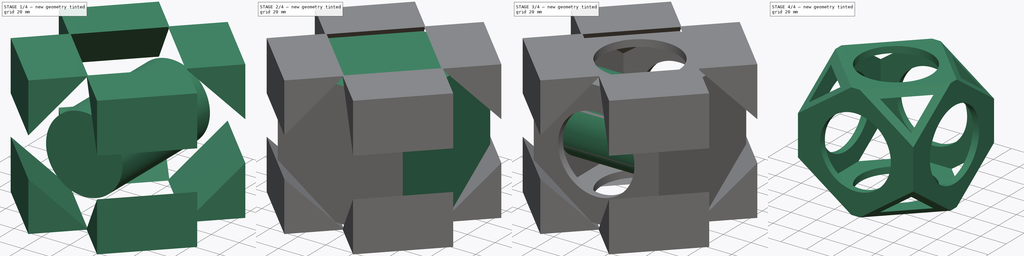
[diagram: build sequence overview — one tinted view per stage of 4, left to right]
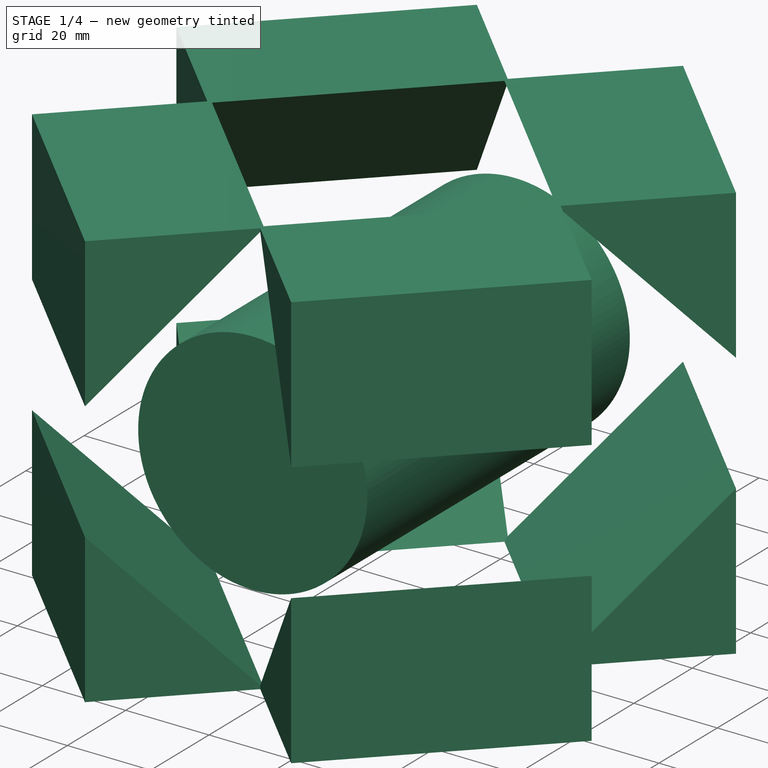
[diagram: stage 1 of 4 — iso view after this stage's code; geometry added in this stage tinted green]
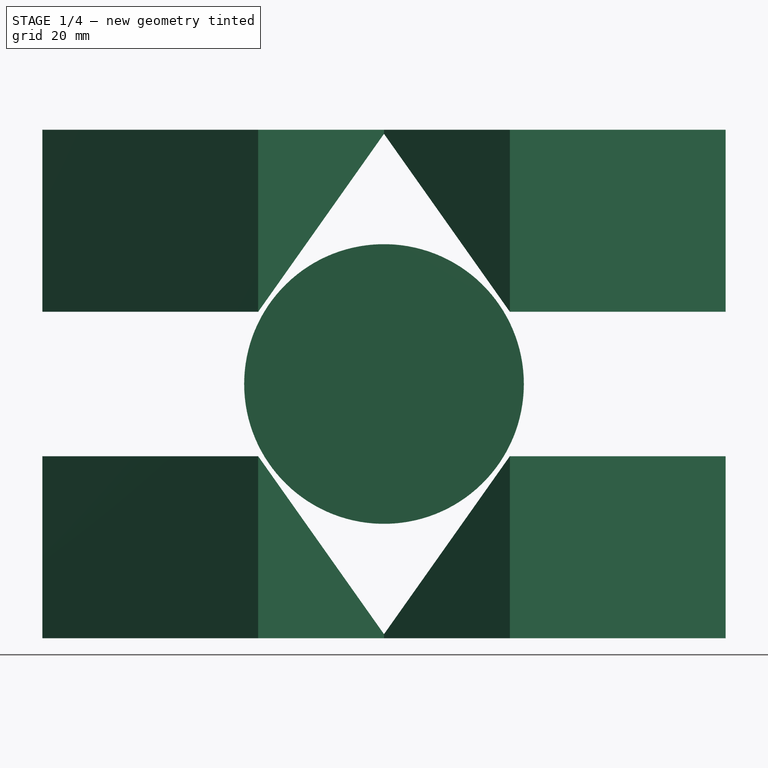
[diagram: stage 1 of 4 — front view after this stage's code; geometry added in this stage tinted green]
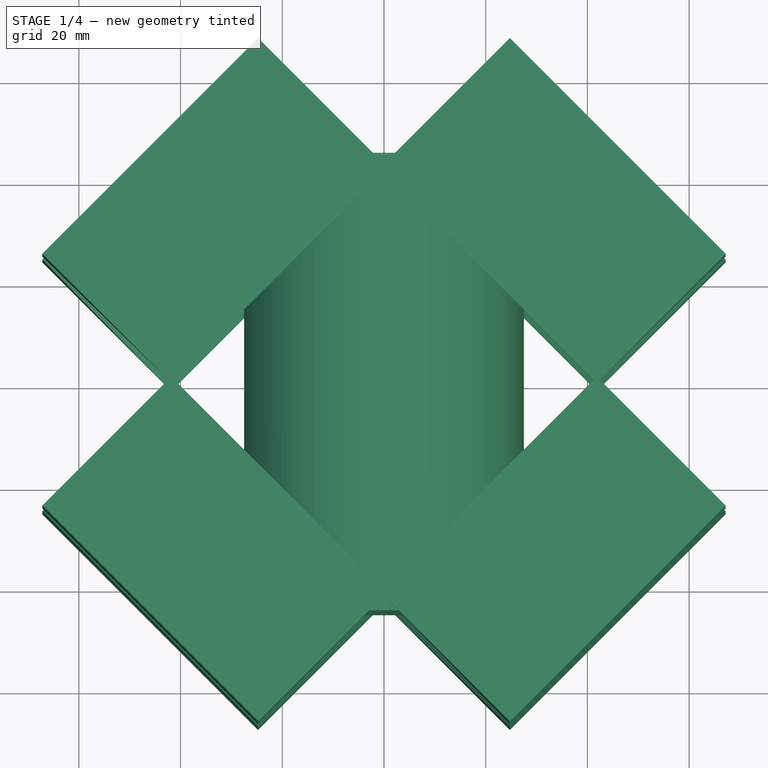
[diagram: stage 1 of 4 — top view after this stage's code; geometry added in this stage tinted green]
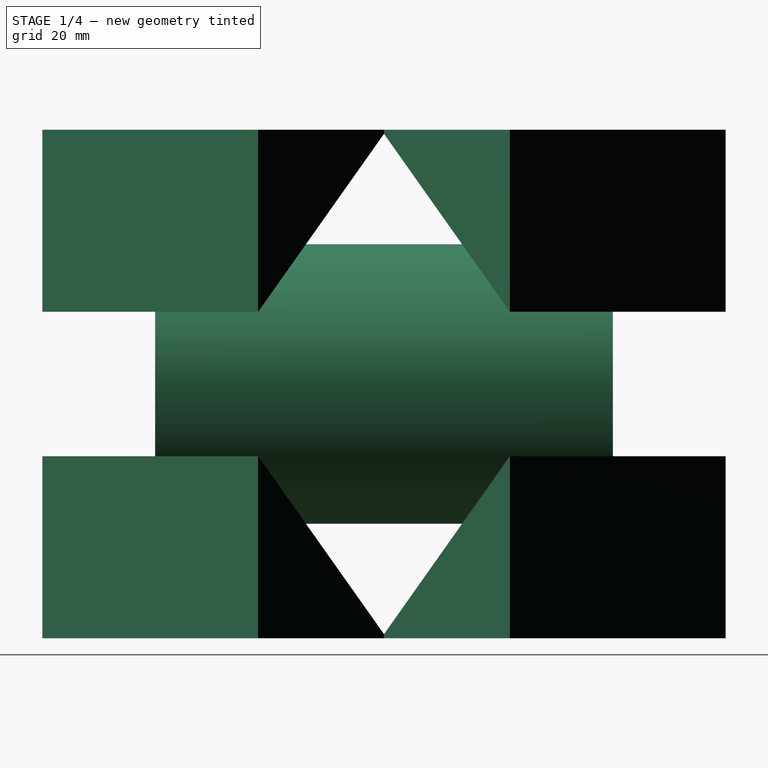
[diagram: stage 1 of 4 — right view after this stage's code; geometry added in this stage tinted green]
FCSTD DOCUMENT  (FreeCAD 0.18.3R)
Label: whiffle_ball
License: All rights reserved
LicenseURL: http://en.wikipedia.org/wiki/All_rights_reserved
objects: Part::Cut×6, Part::Cylinder×3, Part::Box×2, Sketcher::SketchObject×2, Part::Extrusion×2
note: 15 computed .brp shape members not serialized (recipe doc carries the construction recipe); baked Part::Feature solids carry a one-line shape summary decoded from their .brp

FEATURE [Part::Cylinder] Cylinder001
  Angle = 360
  AttacherType = Attacher::AttachEngine3D
  Height = 90
  Placement = pos=(0,45,0) rot=(1,0,0;1.5708rad)
  Radius = 27.5
FEATURE [Sketcher::SketchObject] Sketch
  Placement = pos=(0,0,0) rot=(-1,0,0;4.71239rad)
  sketch-geometry (12):
    g0: LineSegment StartX=-29.196 StartY=50 StartZ=0 EndX=-65 EndY=50 EndZ=0
    g1: LineSegment StartX=-65 StartY=50 StartZ=0 EndX=-65 EndY=14.196 EndZ=0
    g2: LineSegment StartX=-65 StartY=14.196 StartZ=0 EndX=-29.196 EndY=50 EndZ=0
    g3: LineSegment StartX=29.196 StartY=50 StartZ=0 EndX=65 EndY=50 EndZ=0
    g4: LineSegment StartX=65 StartY=50 StartZ=0 EndX=65 EndY=14.196 EndZ=0
    g5: LineSegment StartX=65 StartY=14.196 StartZ=0 EndX=29.196 EndY=50 EndZ=0
    g6: LineSegment StartX=65 StartY=-14.196 StartZ=0 EndX=65 EndY=-50 EndZ=0
    g7: LineSegment StartX=65 StartY=-50 StartZ=0 EndX=29.196 EndY=-50 EndZ=0
    g8: LineSegment StartX=29.196 StartY=-50 StartZ=0 EndX=65 EndY=-14.196 EndZ=0
    g9: LineSegment StartX=-65 StartY=-14.196 StartZ=0 EndX=-65 EndY=-50 EndZ=0
    g10: LineSegment StartX=-65 StartY=-50 StartZ=0 EndX=-29.196 EndY=-50 EndZ=0
    g11: LineSegment StartX=-29.196 StartY=-50 StartZ=0 EndX=-65 EndY=-14.196 EndZ=0
  constraints (33):
    c: Horizontal(g0)
    c: Coincident(g0,g1)
    c: Vertical(g1)
    c: Coincident(g1,g2)
    c: Coincident(g2,g0)
    c: Horizontal(g3)
    c: Coincident(g3,g4)
    c: Vertical(g4)
    c: Coincident(g4,g5)
    c: Coincident(g5,g3)
    c: Vertical(g6)
    c: Coincident(g6,g7)
    c: Horizontal(g7)
    c: Coincident(g7,g8)
    c: Coincident(g8,g6)
    c: Vertical(g9)
    c: Coincident(g9,g10)
    c: Horizontal(g10)
    c: Coincident(g10,g11)
    c: Coincident(g11,g9)
    c: Equal(g0,g1)
    c: Equal(g1,g3)
    c: Equal(g3,g4)
    c: Equal(g4,g6)
    c: Equal(g6,g7)
    c: Equal(g7,g10)
    c: Equal(g10,g9)
    c: Symmetric(g1,g9,g-1)
    c: Symmetric(g0,g3,g-2)
    c: Symmetric(g10,g7,g-2)
    c: Distance(g-1,g2) = 56
    c: DistanceY(g9,g0) = 100
    c: DistanceX(g0,g3) = 130
FEATURE [Part::Extrusion] Extrude
  Base = -> Sketch
  Dir = (0,-1,0)
  DirMode = 2
  FaceMakerClass = Part::FaceMakerBullseye
  LengthFwd = 60
  LengthRev = 0
  Placement = pos=(0,0,0) rot=(0,0,1;0.785398rad)
  Solid = true
  Symmetric = true
FEATURE [Sketcher::SketchObject] Sketch001
  Placement = pos=(0,0,0) rot=(1,0,0;1.5708rad)
  sketch-geometry (12):
    g0: LineSegment StartX=-29.196 StartY=50 StartZ=0 EndX=-65 EndY=50 EndZ=0
    g1: LineSegment StartX=-65 StartY=50 StartZ=0 EndX=-65 EndY=14.196 EndZ=0
    g2: LineSegment StartX=-65 StartY=14.196 StartZ=0 EndX=-29.196 EndY=50 EndZ=0
    g3: LineSegment StartX=29.196 StartY=50 StartZ=0 EndX=65 EndY=50 EndZ=0
    g4: LineSegment StartX=65 StartY=50 StartZ=0 EndX=65 EndY=14.196 EndZ=0
    g5: LineSegment StartX=65 StartY=14.196 StartZ=0 EndX=29.196 EndY=50 EndZ=0
    g6: LineSegment StartX=65 StartY=-14.196 StartZ=0 EndX=65 EndY=-50 EndZ=0
    g7: LineSegment StartX=65 StartY=-50 StartZ=0 EndX=29.196 EndY=-50 EndZ=0
    g8: LineSegment StartX=29.196 StartY=-50 StartZ=0 EndX=65 EndY=-14.196 EndZ=0
    g9: LineSegment StartX=-65 StartY=-14.196 StartZ=0 EndX=-65 EndY=-50 EndZ=0
    g10: LineSegment StartX=-65 StartY=-50 StartZ=0 EndX=-29.196 EndY=-50 EndZ=0
    g11: LineSegment StartX=-29.196 StartY=-50 StartZ=0 EndX=-65 EndY=-14.196 EndZ=0
  constraints (33):
    c: Horizontal(g0)
    c: Coincident(g0,g1)
    c: Vertical(g1)
    c: Coincident(g1,g2)
    c: Coincident(g2,g0)
    c: Horizontal(g3)
    c: Coincident(g3,g4)
    c: Vertical(g4)
    c: Coincident(g4,g5)
    c: Coincident(g5,g3)
    c: Vertical(g6)
    c: Coincident(g6,g7)
    c: Horizontal(g7)
    c: Coincident(g7,g8)
    c: Coincident(g8,g6)
    c: Vertical(g9)
    c: Coincident(g9,g10)
    c: Horizontal(g10)
    c: Coincident(g10,g11)
    c: Coincident(g11,g9)
    c: Equal(g0,g1)
    c: Equal(g1,g3)
    c: Equal(g3,g4)
    c: Equal(g4,g6)
    c: Equal(g6,g7)
    c: Equal(g7,g10)
    c: Equal(g10,g9)
    c: Symmetric(g1,g9,g-1)
    c: Symmetric(g0,g3,g-2)
    c: Symmetric(g10,g7,g-2)
    c: Distance(g-1,g2) = 56
    c: DistanceY(g9,g0) = 100
    c: DistanceX(g0,g3) = 130
FEATURE [Part::Extrusion] Extrude001
  Base = -> Sketch001
  Dir = (0,-1,2e-16)
  DirMode = 2
  FaceMakerClass = Part::FaceMakerBullseye
  LengthFwd = 60
  LengthRev = 0
  Placement = pos=(0,0,0) rot=(0,0,1;5.49779rad)
  Solid = true
  Symmetric = true
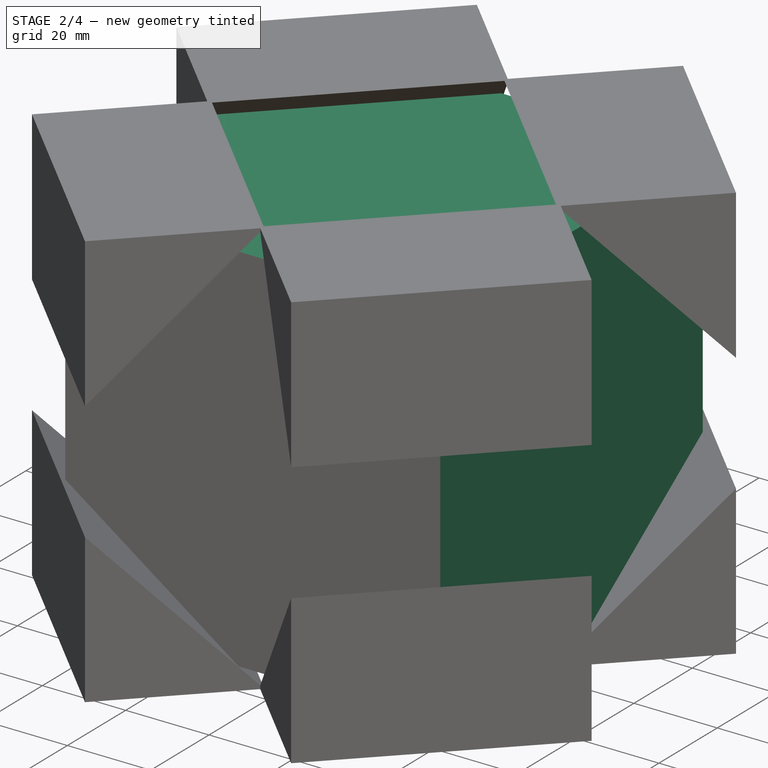
[diagram: stage 2 of 4 — iso view after this stage's code; geometry added in this stage tinted green]
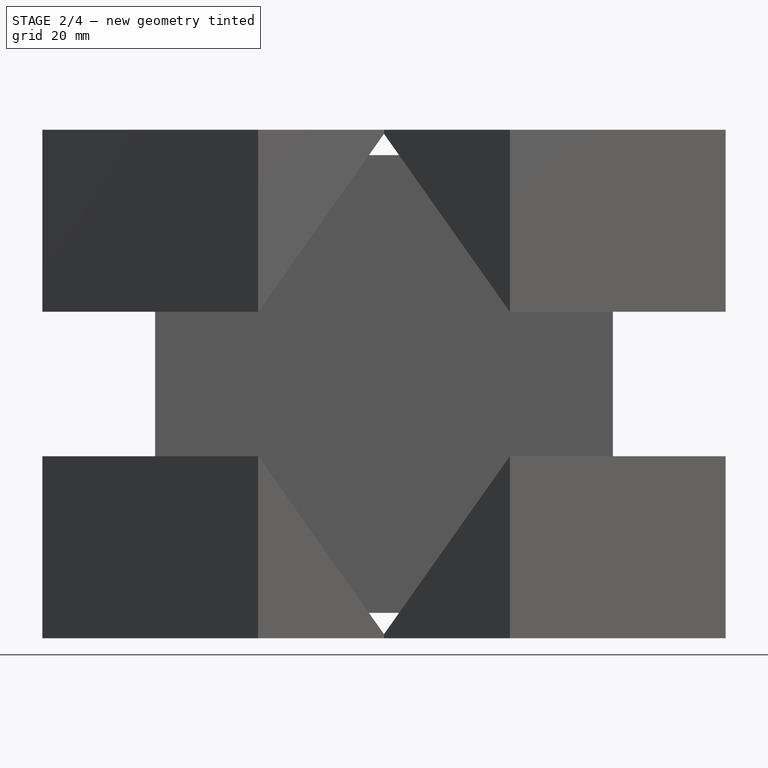
[diagram: stage 2 of 4 — front view after this stage's code; geometry added in this stage tinted green]
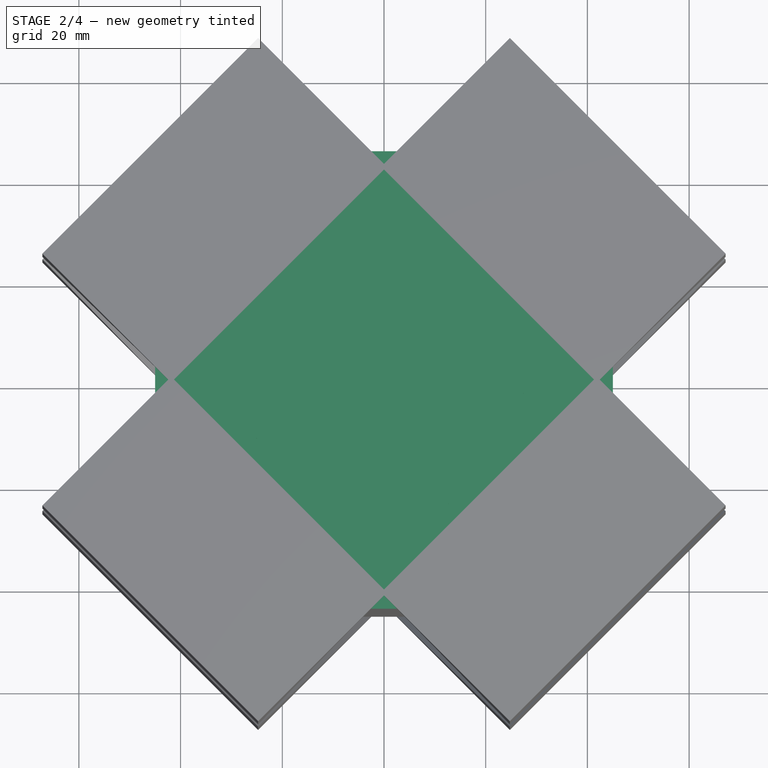
[diagram: stage 2 of 4 — top view after this stage's code; geometry added in this stage tinted green]
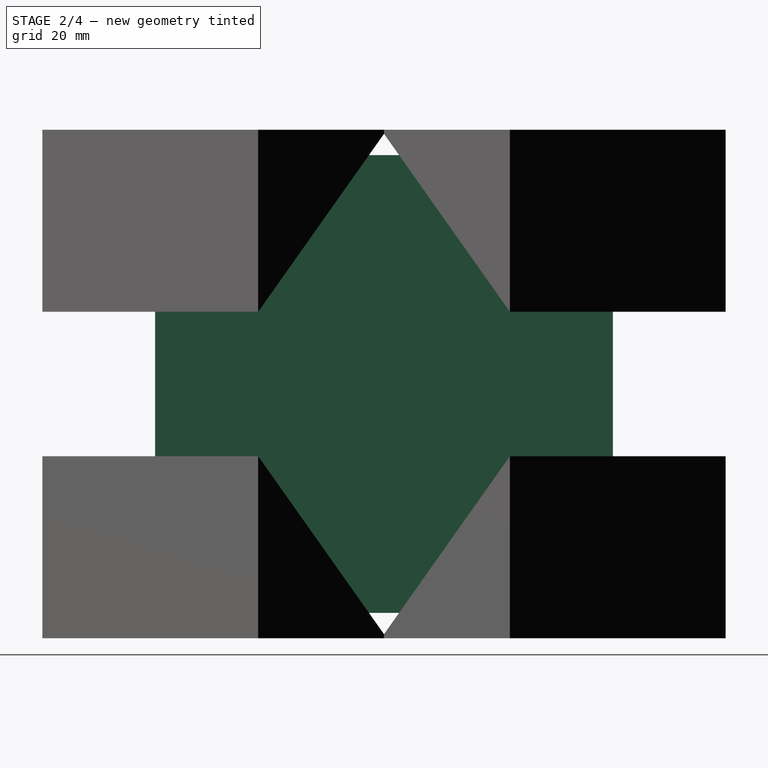
[diagram: stage 2 of 4 — right view after this stage's code; geometry added in this stage tinted green]
FEATURE [Part::Box] Box  label="Cube"
  AttacherType = Attacher::AttachEngine3D
  Height = 90
  Length = 90
  Placement = pos=(-45,-45,-45) rot=(0,0,1;0rad)
  Width = 90
FEATURE [Part::Box] Box001  label="Cube001"
  AttacherType = Attacher::AttachEngine3D
  Height = 80
  Length = 80
  Placement = pos=(-40,-40,-40) rot=(0,0,1;0rad)
  Width = 80
FEATURE [Part::Cylinder] Cylinder
  Angle = 360
  AttacherType = Attacher::AttachEngine3D
  Height = 90
  Placement = pos=(0,0,-45) rot=(0,0,1;0rad)
  Radius = 27.5
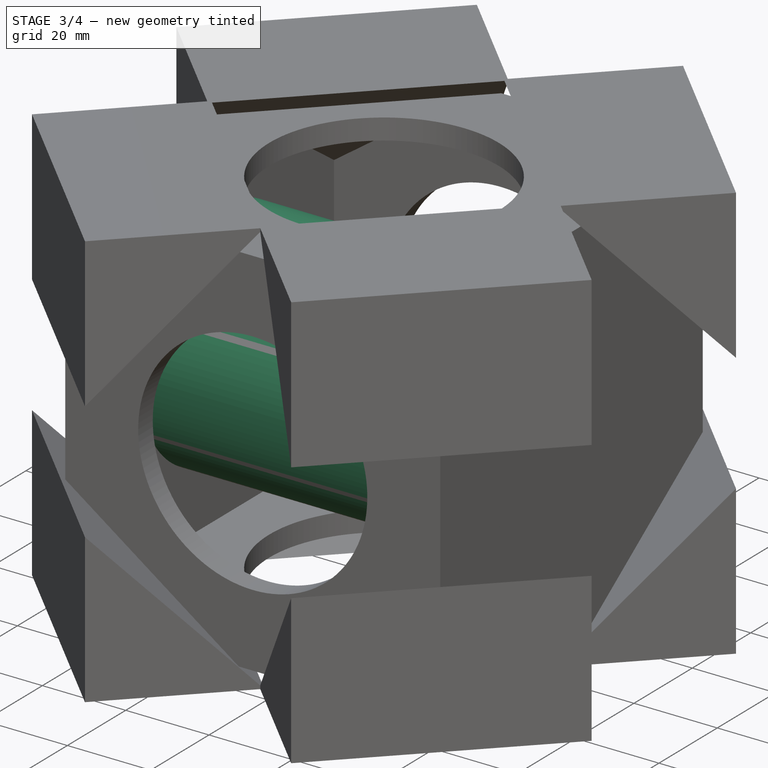
[diagram: stage 3 of 4 — iso view after this stage's code; geometry added in this stage tinted green]
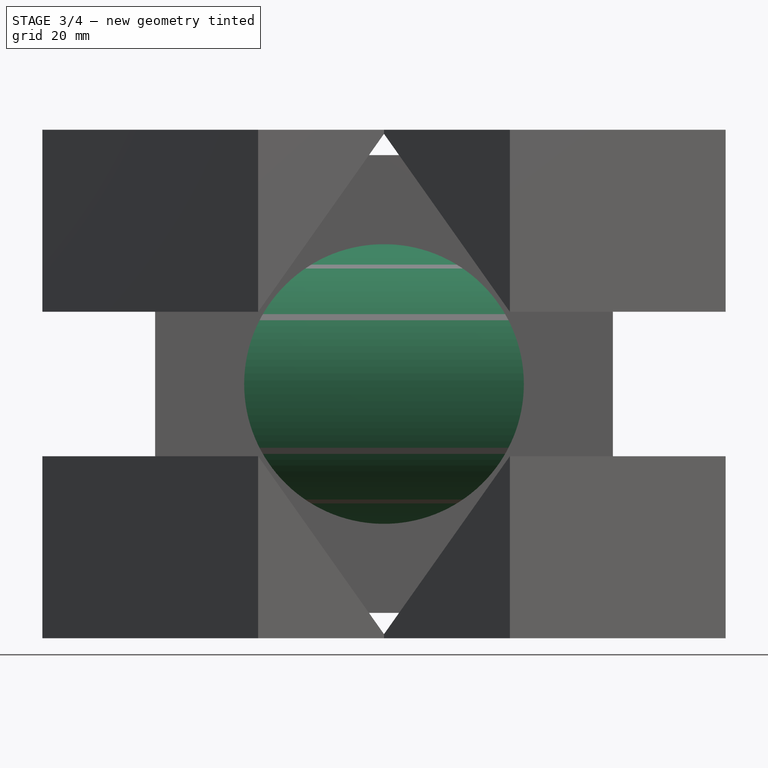
[diagram: stage 3 of 4 — front view after this stage's code; geometry added in this stage tinted green]
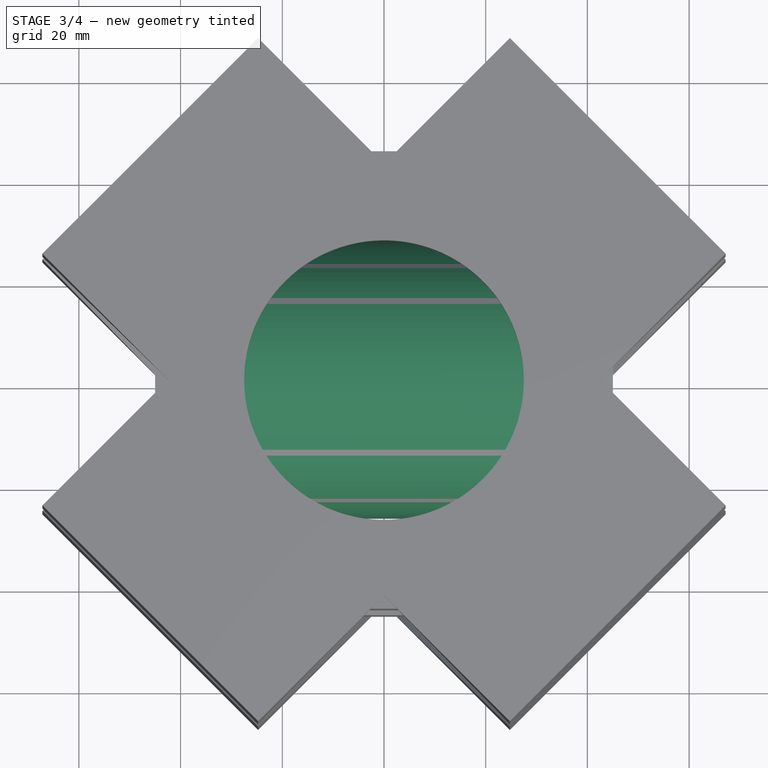
[diagram: stage 3 of 4 — top view after this stage's code; geometry added in this stage tinted green]
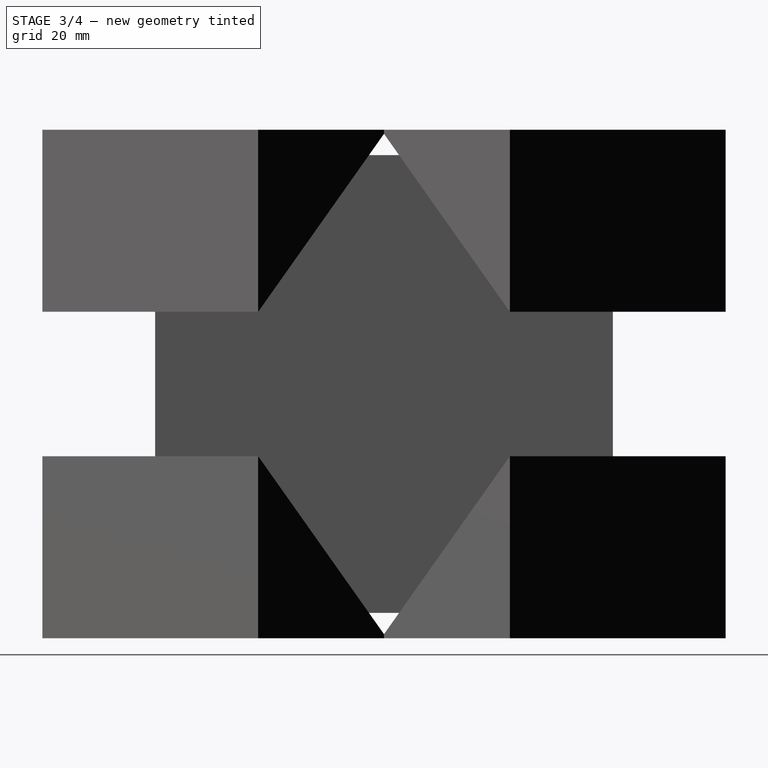
[diagram: stage 3 of 4 — right view after this stage's code; geometry added in this stage tinted green]
FEATURE [Part::Cut] Cut
  Base = -> Box
  Tool = -> Box001
FEATURE [Part::Cut] Cut001
  Base = -> Cut
  Tool = -> Cylinder
FEATURE [Part::Cylinder] Cylinder002
  Angle = 360
  AttacherType = Attacher::AttachEngine3D
  Height = 90
  Placement = pos=(-45,1,0) rot=(0,1,0;1.5708rad)
  Radius = 27.5
FEATURE [Part::Cut] Cut002
  Base = -> Cut001
  Tool = -> Cylinder001
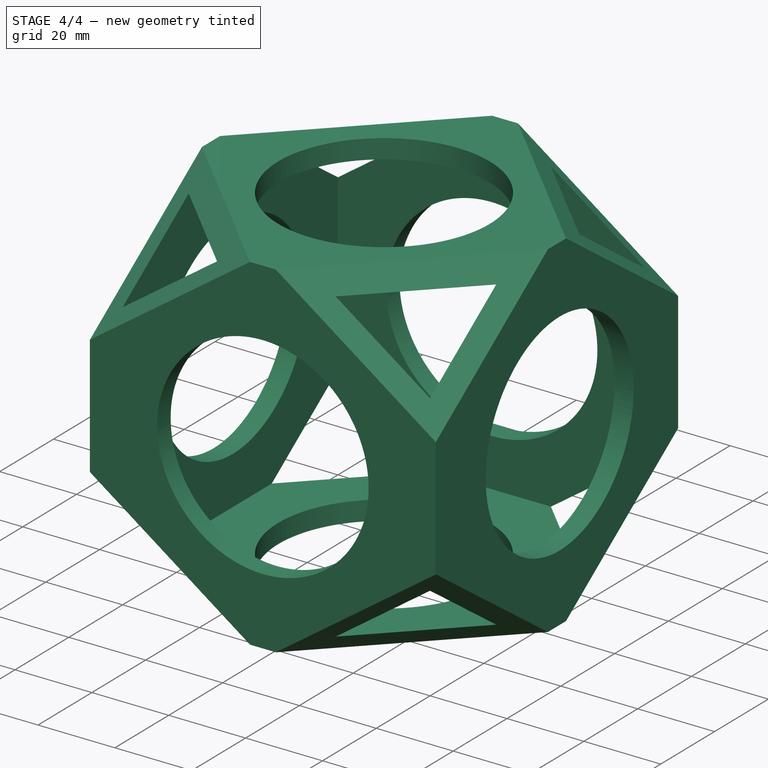
[diagram: stage 4 of 4 — iso view after this stage's code; geometry added in this stage tinted green]
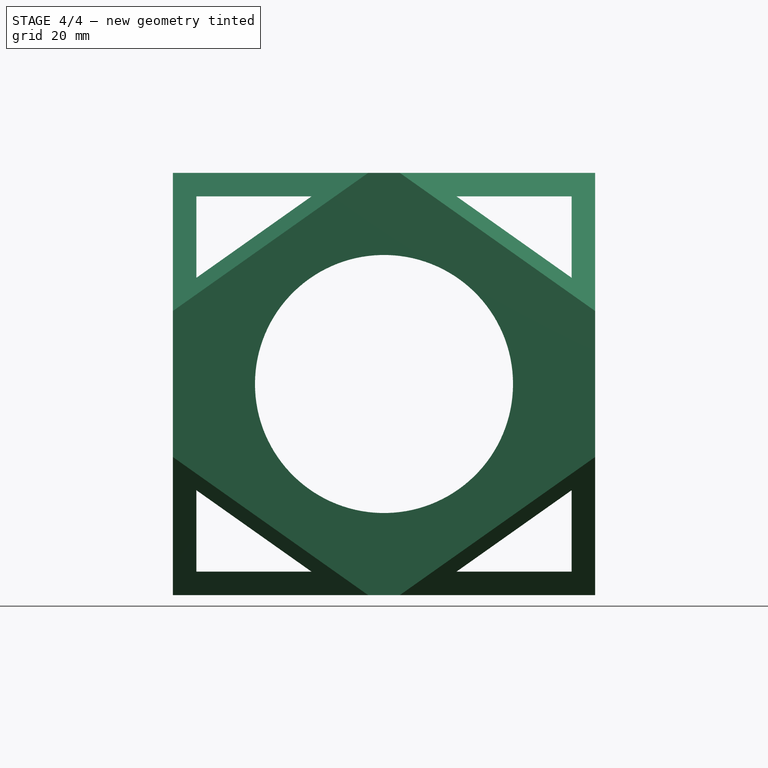
[diagram: stage 4 of 4 — front view after this stage's code; geometry added in this stage tinted green]
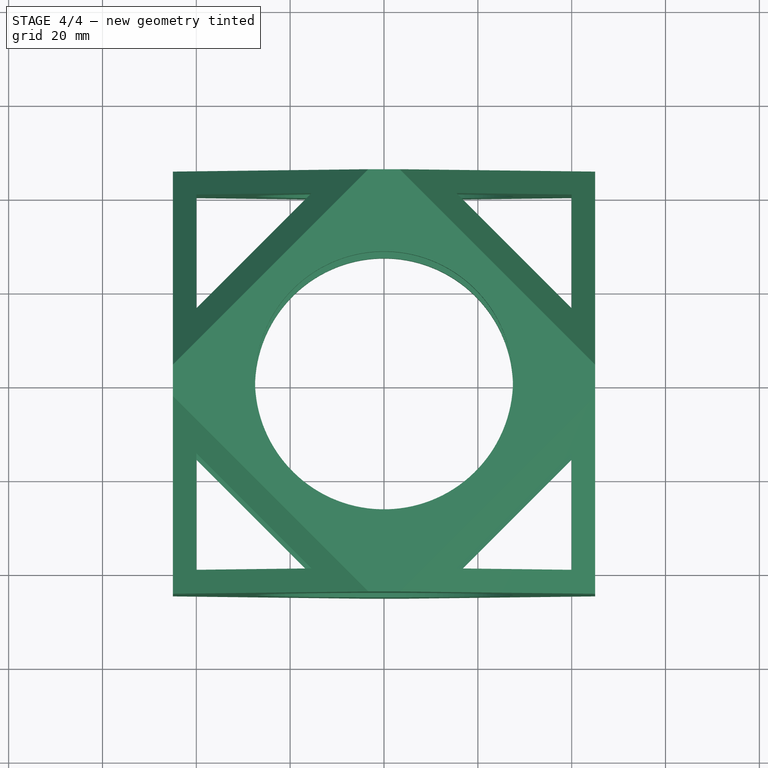
[diagram: stage 4 of 4 — top view after this stage's code; geometry added in this stage tinted green]
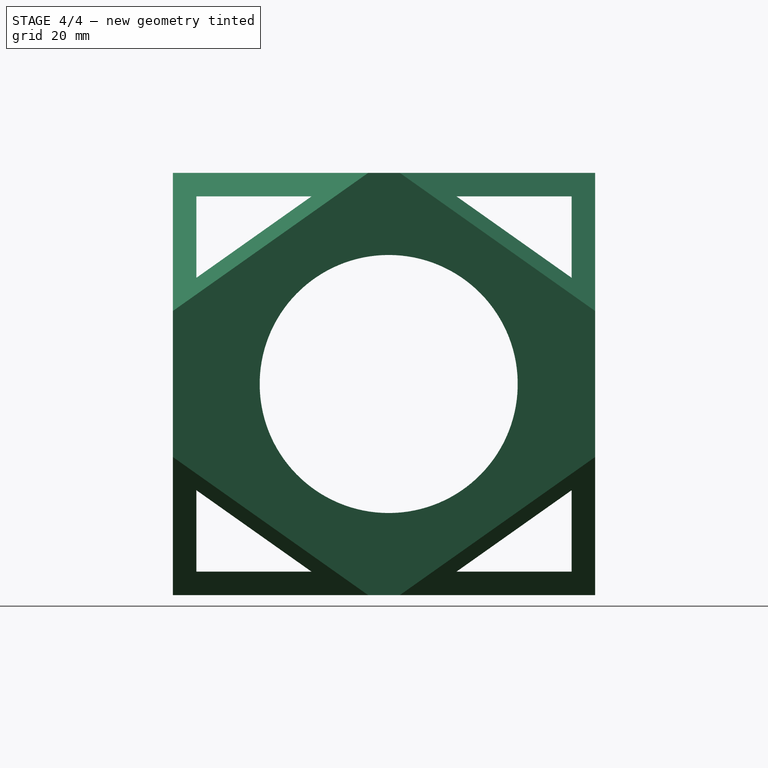
[diagram: stage 4 of 4 — right view after this stage's code; geometry added in this stage tinted green]
FEATURE [Part::Cut] Cut003
  Base = -> Cut002
  Tool = -> Cylinder002
FEATURE [Part::Cut] Cut004
  Base = -> Cut003
  Tool = -> Extrude
FEATURE [Part::Cut] Cut005
  Base = -> Cut004
  Tool = -> Extrude001
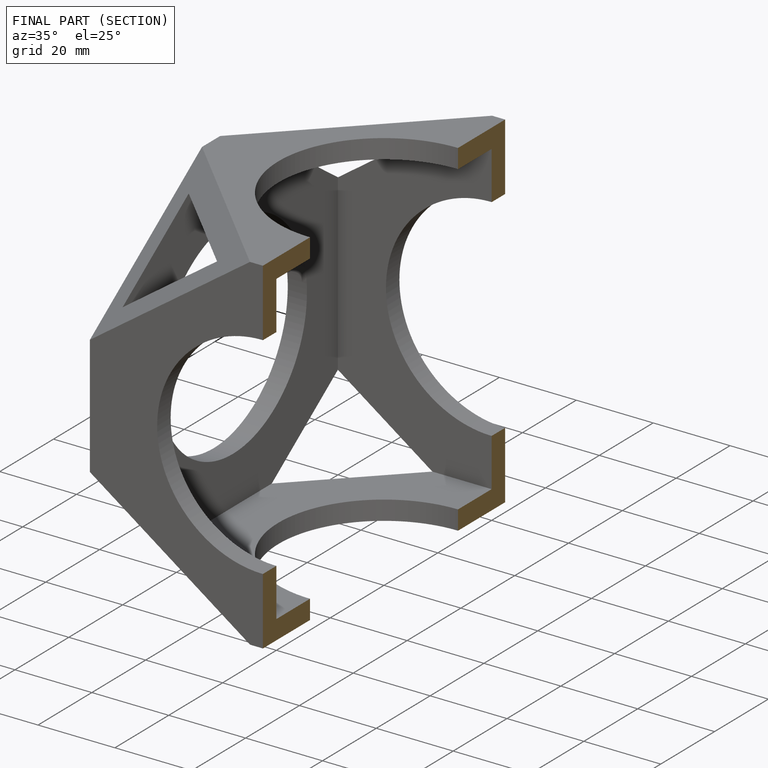
[diagram: finished part — half-section view (interior)]
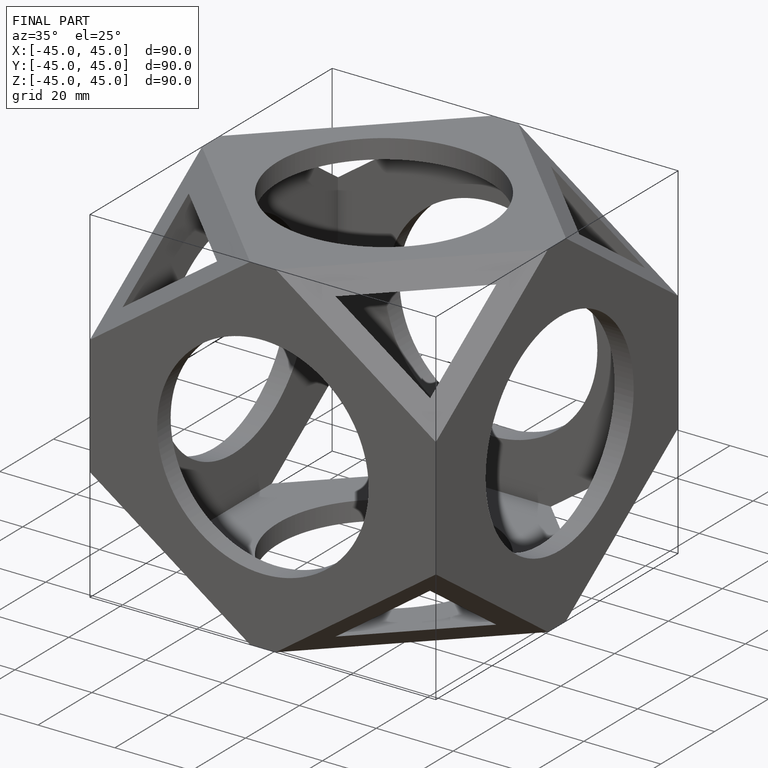
[diagram: finished part — iso view with bounding-box wireframe]
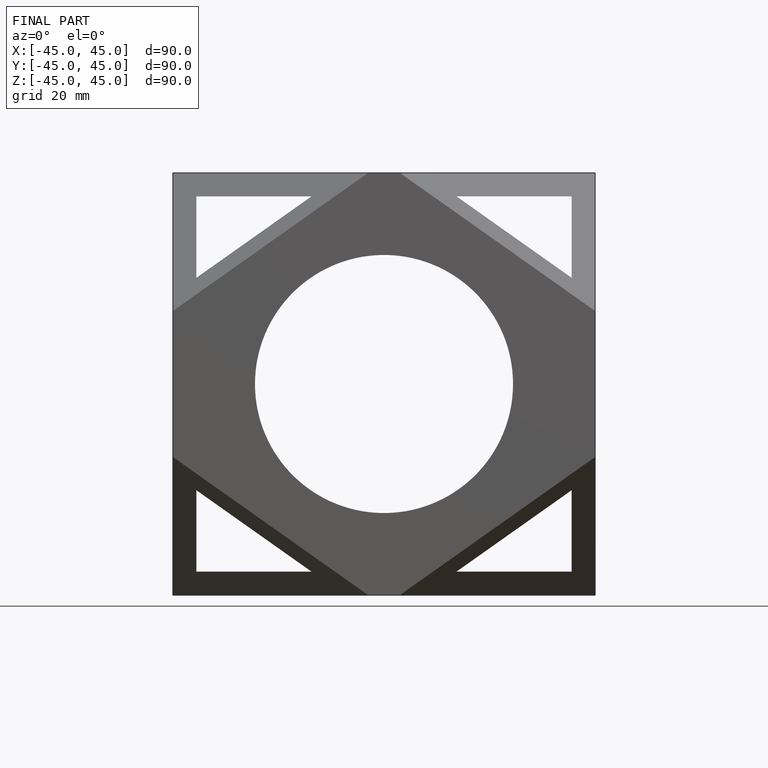
[diagram: finished part — front view with bounding-box wireframe]
